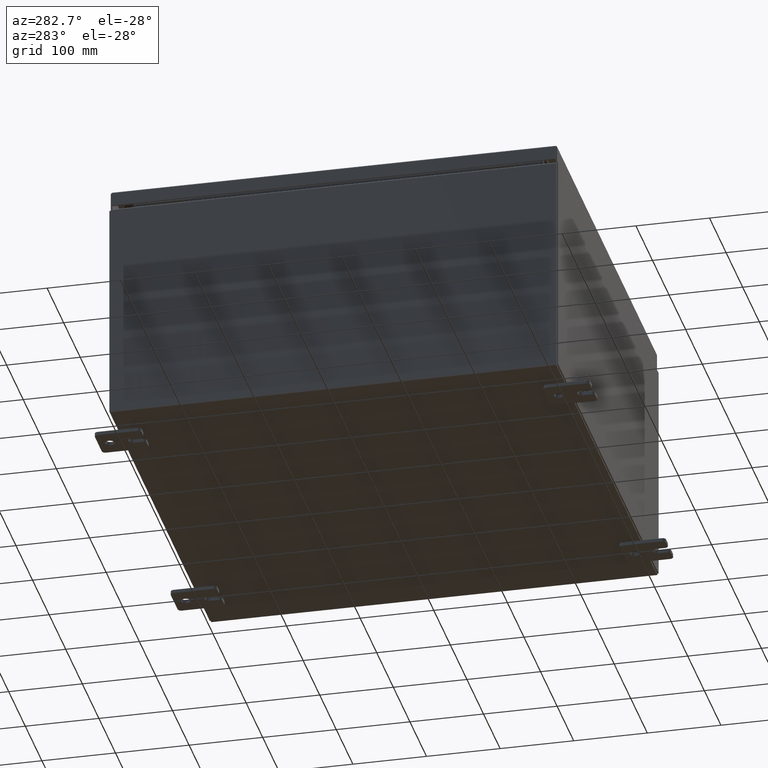
[diagram: clean part render]
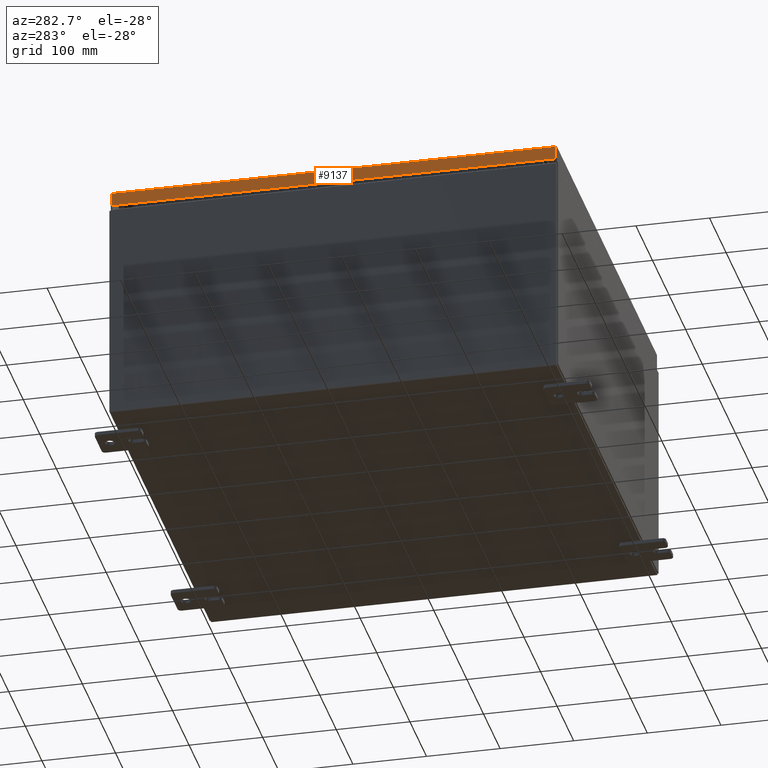
[diagram: same view with one face highlighted and labeled with its STEP entity id]
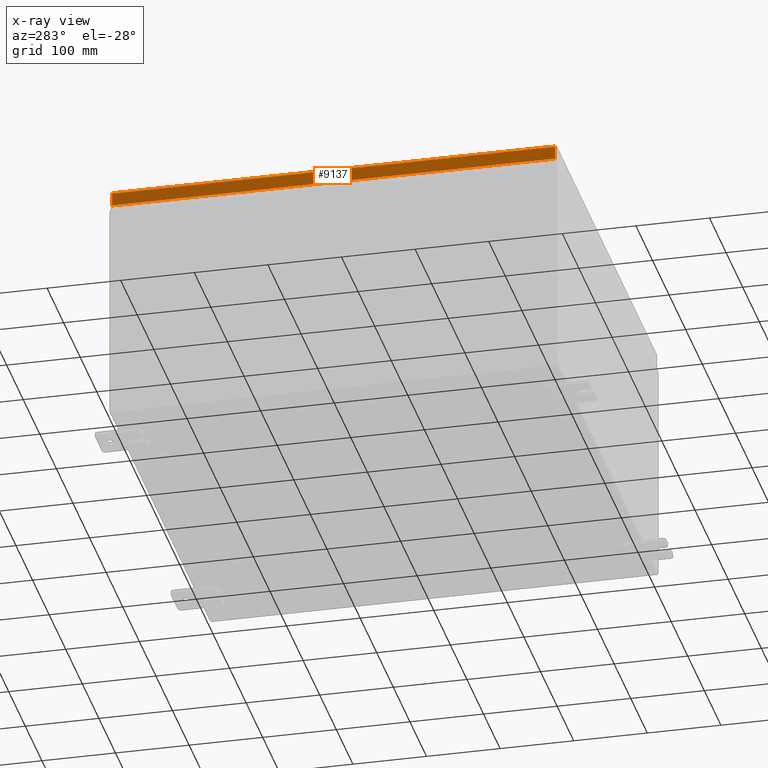
[diagram: x-ray of the same camera — body ghosted, the highlighted face saturated]
A machine part, auxiliary view. The second image highlights one B-rep face of the part: STEP entity #9137.
The next image is the same camera in x-ray: the body ghosted, the highlighted face saturated — about 0% of this face is hidden behind the body in this view.
In plain terms, the highlighted planar face has unit normal (1, 0, -0).
Its self-contained STEP definition (entity closure, byte-faithful):
#2749 = VECTOR ( 'NONE', #29597, 39.37007874015748100 ) ;
#4317 = LINE ( 'NONE', #24624, #2749 ) ;
#5558 = CARTESIAN_POINT ( 'NONE',  ( -11.93750000000000000, 11.84865786437627300, -0.7949999999999968200 ) ) ;
#5695 = DIRECTION ( 'NONE',  ( 1.000000000000000000, 9.153836209136835400E-017, -3.034122441942816500E-015 ) ) ;
#6639 = DIRECTION ( 'NONE',  ( -9.153836209136798400E-017, 1.000000000000000000, 1.201441002449204700E-016 ) ) ;
#9137 = ADVANCED_FACE ( 'NONE', ( #25060 ), #55936, .F. ) ;
#9330 = AXIS2_PLACEMENT_3D ( 'NONE', #35484, #5695, #63001 ) ;
#9515 = ORIENTED_EDGE ( 'NONE', *, *, #57353, .F. ) ;
#10298 = DIRECTION ( 'NONE',  ( 9.153836209136808200E-017, -1.000000000000000000, -9.153836209136826700E-017 ) ) ;
#11355 = CARTESIAN_POINT ( 'NONE',  ( -11.93750000000000000, -11.93750000000000000, -0.7949999999999997100 ) ) ;
#12864 = VERTEX_POINT ( 'NONE', #39343 ) ;
#14369 = VECTOR ( 'NONE', #10298, 39.37007874015748100 ) ;
#20593 = EDGE_CURVE ( 'NONE', #21534, #12864, #27431, .T. ) ;
#21534 = VERTEX_POINT ( 'NONE', #50242 ) ;
#22009 = CARTESIAN_POINT ( 'NONE',  ( -11.93750000000000000, -11.84865786437626600, -0.7949999999999996000 ) ) ;
#22464 = EDGE_CURVE ( 'NONE', #12864, #52913, #4317, .T. ) ;
#22623 = VERTEX_POINT ( 'NONE', #5558 ) ;
#23685 = LINE ( 'NONE', #26002, #46684 ) ;
#24624 = CARTESIAN_POINT ( 'NONE',  ( -11.93749999999999800, -11.84865786437626900, -0.07469999999999976700 ) ) ;
#25060 = FACE_OUTER_BOUND ( 'NONE', #55530, .T. ) ;
#26002 = CARTESIAN_POINT ( 'NONE',  ( -11.93749999999999800, 11.84865786437626800, 1.192193859543173000E-013 ) ) ;
#27431 = LINE ( 'NONE', #34746, #14369 ) ;
#29597 = DIRECTION ( 'NONE',  ( -3.034122441942817300E-015, 6.982962677686265900E-015, -1.000000000000000000 ) ) ;
#32987 = VECTOR ( 'NONE', #6639, 39.37007874015748100 ) ;
#34746 = CARTESIAN_POINT ( 'NONE',  ( -11.93749999999999800, -11.93750000000000000, -0.08770000000000004200 ) ) ;
#35484 = CARTESIAN_POINT ( 'NONE',  ( -11.93749999999999800, -1.092739197465709600E-015, 3.648065030670394700E-014 ) ) ;
#37300 = ORIENTED_EDGE ( 'NONE', *, *, #39020, .T. ) ;
#39020 = EDGE_CURVE ( 'NONE', #21534, #22623, #23685, .T. ) ;
#39343 = CARTESIAN_POINT ( 'NONE',  ( -11.93749999999999800, -11.84865786437626800, -0.08769999999999897300 ) ) ;
#44972 = ORIENTED_EDGE ( 'NONE', *, *, #20593, .F. ) ;
#46684 = VECTOR ( 'NONE', #55370, 39.37007874015748100 ) ;
#50242 = CARTESIAN_POINT ( 'NONE',  ( -11.93750000000000000, 11.84865786437626800, -0.08769999999999786300 ) ) ;
#52913 = VERTEX_POINT ( 'NONE', #22009 ) ;
#55370 = DIRECTION ( 'NONE',  ( -3.034122441942817300E-015, 6.982962677686265900E-015, -1.000000000000000000 ) ) ;
#55530 = EDGE_LOOP ( 'NONE', ( #44972, #37300, #9515, #61654 ) ) ;
#55936 = PLANE ( 'NONE',  #9330 ) ;
#57353 = EDGE_CURVE ( 'NONE', #52913, #22623, #59002, .T. ) ;
#59002 = LINE ( 'NONE', #11355, #32987 ) ;
#61654 = ORIENTED_EDGE ( 'NONE', *, *, #22464, .F. ) ;
#63001 = DIRECTION ( 'NONE',  ( -3.034122441942816500E-015, 0.0000000000000000000, -1.000000000000000000 ) ) ;